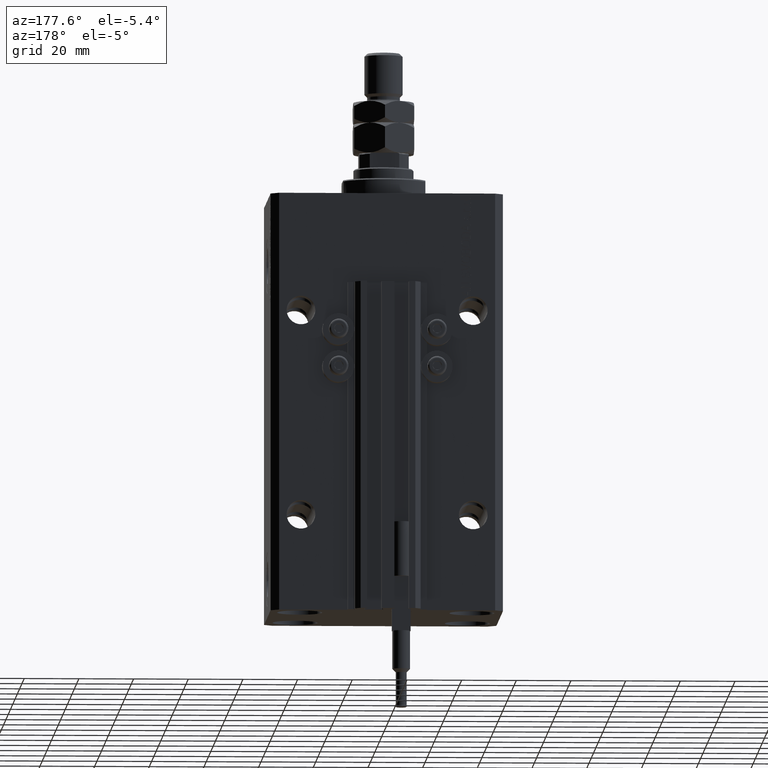
[diagram: clean part render]
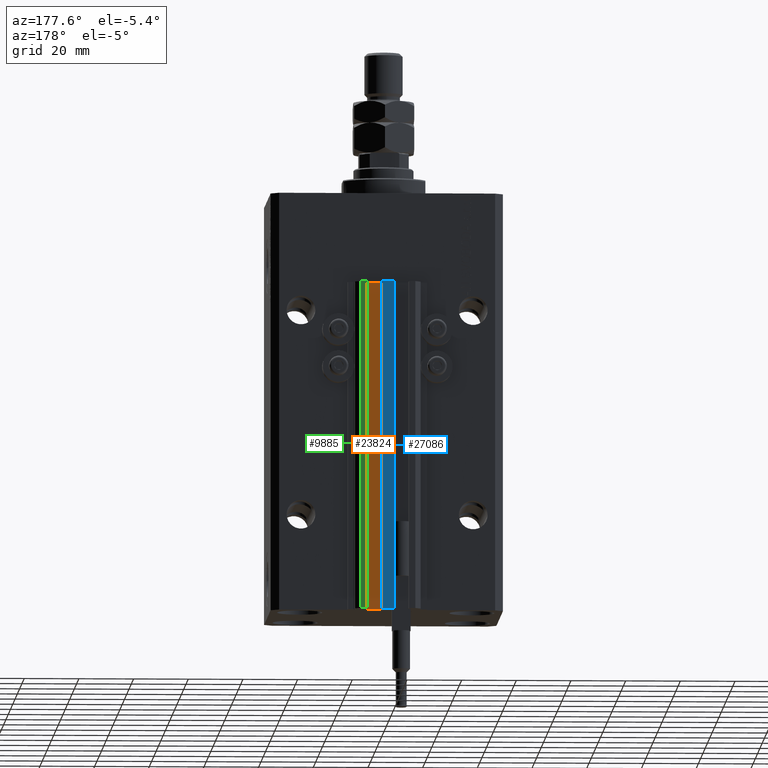
[diagram: same view with three faces highlighted in distinct colors, each labeled with its STEP entity id]
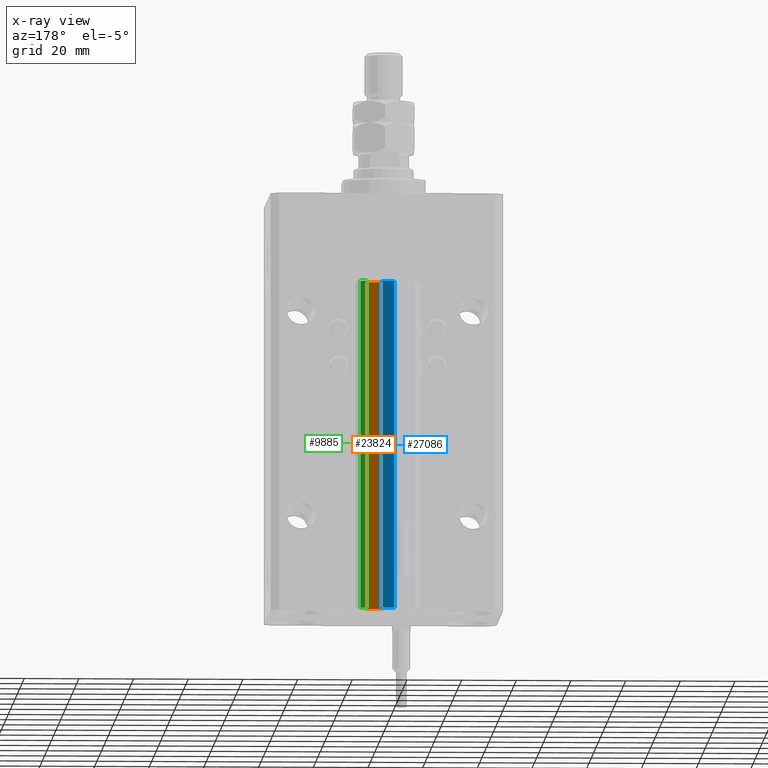
[diagram: x-ray of the same camera — body ghosted, the three highlighted faces saturated]
A machine part, auxiliary view with three faces highlighted in distinct colors.
The next image is the same camera in x-ray (body ghosted, the three faces saturated) — at least one of them is partly hidden behind the body in this view.
Their STEP definitions:

[orange] entity #23824 — the highlighted planar face has unit normal (0, 1, 0).
#83 = CARTESIAN_POINT ( 'NONE',  ( 1.800000000000000933, 33.50000000000000000, -33.00000000000000000 ) ) ;
#1626 = CARTESIAN_POINT ( 'NONE',  ( 8.199999999999999289, 33.50000000000000000, -153.0000000000000000 ) ) ;
#2266 = EDGE_CURVE ( 'NONE', #22107, #38947, #28808, .T. ) ;
#2409 = LINE ( 'NONE', #33883, #29758 ) ;
#3352 = CARTESIAN_POINT ( 'NONE',  ( 8.199999999999999289, 33.50000000000000000, -33.00000000000000000 ) ) ;
#4803 = CARTESIAN_POINT ( 'NONE',  ( 8.199999999999999289, 33.50000000000000000, -33.00000000000000000 ) ) ;
#5303 = DIRECTION ( 'NONE',  ( -1.000000000000000000, 0.000000000000000000, 0.000000000000000000 ) ) ;
#5429 = VECTOR ( 'NONE', #34911, 1000.000000000000000 ) ;
#8906 = EDGE_LOOP ( 'NONE', ( #23536, #35088, #37179, #48665 ) ) ;
#9643 = CARTESIAN_POINT ( 'NONE',  ( 1.800000000000000933, 33.50000000000000000, -153.0000000000000000 ) ) ;
#12390 = VECTOR ( 'NONE', #20621, 1000.000000000000000 ) ;
#13134 = CARTESIAN_POINT ( 'NONE',  ( 1.800000000000000933, 33.50000000000000000, -153.0000000000000000 ) ) ;
#16602 = EDGE_CURVE ( 'NONE', #22397, #38947, #48462, .T. ) ;
#17281 = PLANE ( 'NONE',  #47179 ) ;
#17368 = EDGE_CURVE ( 'NONE', #42711, #22107, #2409, .T. ) ;
#20621 = DIRECTION ( 'NONE',  ( 0.000000000000000000, 0.000000000000000000, 1.000000000000000000 ) ) ;
#22107 = VERTEX_POINT ( 'NONE', #3352 ) ;
#22397 = VERTEX_POINT ( 'NONE', #9643 ) ;
#23041 = LINE ( 'NONE', #39287, #5429 ) ;
#23536 = ORIENTED_EDGE ( 'NONE', *, *, #2266, .F. ) ;
#23824 = ADVANCED_FACE ( 'NONE', ( #36367 ), #17281, .T. ) ;
#28808 = LINE ( 'NONE', #4803, #40770 ) ;
#29758 = VECTOR ( 'NONE', #42113, 1000.000000000000000 ) ;
#33263 = CARTESIAN_POINT ( 'NONE',  ( 8.199999999999999289, 33.50000000000000000, -153.0000000000000000 ) ) ;
#33883 = CARTESIAN_POINT ( 'NONE',  ( 8.199999999999999289, 33.50000000000000000, -153.0000000000000000 ) ) ;
#34911 = DIRECTION ( 'NONE',  ( -1.000000000000000000, 0.000000000000000000, 0.000000000000000000 ) ) ;
#35088 = ORIENTED_EDGE ( 'NONE', *, *, #17368, .F. ) ;
#36367 = FACE_OUTER_BOUND ( 'NONE', #8906, .T. ) ;
#37132 = DIRECTION ( 'NONE',  ( 0.000000000000000000, 0.000000000000000000, 1.000000000000000000 ) ) ;
#37179 = ORIENTED_EDGE ( 'NONE', *, *, #50591, .T. ) ;
#38947 = VERTEX_POINT ( 'NONE', #83 ) ;
#39287 = CARTESIAN_POINT ( 'NONE',  ( 8.199999999999999289, 33.50000000000000000, -153.0000000000000000 ) ) ;
#40770 = VECTOR ( 'NONE', #5303, 1000.000000000000000 ) ;
#42113 = DIRECTION ( 'NONE',  ( 0.000000000000000000, 0.000000000000000000, 1.000000000000000000 ) ) ;
#42711 = VERTEX_POINT ( 'NONE', #1626 ) ;
#44366 = DIRECTION ( 'NONE',  ( 0.000000000000000000, 1.000000000000000000, -0.000000000000000000 ) ) ;
#47179 = AXIS2_PLACEMENT_3D ( 'NONE', #33263, #44366, #37132 ) ;
#48462 = LINE ( 'NONE', #13134, #12390 ) ;
#48665 = ORIENTED_EDGE ( 'NONE', *, *, #16602, .T. ) ;
#50591 = EDGE_CURVE ( 'NONE', #42711, #22397, #23041, .T. ) ;

[blue] entity #27086 — the highlighted planar face has unit normal (0, -1, 0).
#297 = ORIENTED_EDGE ( 'NONE', *, *, #48565, .T. ) ;
#1085 = EDGE_CURVE ( 'NONE', #35405, #17147, #36849, .T. ) ;
#2658 = VERTEX_POINT ( 'NONE', #9061 ) ;
#3182 = ORIENTED_EDGE ( 'NONE', *, *, #37697, .F. ) ;
#3746 = CARTESIAN_POINT ( 'NONE',  ( 2.349999999999999645, 39.50000000000000711, -153.0000000000000000 ) ) ;
#7360 = DIRECTION ( 'NONE',  ( 1.000000000000000000, 0.000000000000000000, 0.000000000000000000 ) ) ;
#8495 = DIRECTION ( 'NONE',  ( 0.000000000000000000, 0.000000000000000000, 1.000000000000000000 ) ) ;
#8651 = VECTOR ( 'NONE', #7360, 1000.000000000000000 ) ;
#9061 = CARTESIAN_POINT ( 'NONE',  ( -2.350000000000003642, 39.50000000000000711, -153.0000000000000000 ) ) ;
#9773 = CARTESIAN_POINT ( 'NONE',  ( -2.350000000000003642, 39.50000000000000711, -153.0000000000000000 ) ) ;
#11879 = DIRECTION ( 'NONE',  ( 0.000000000000000000, -0.000000000000000000, -1.000000000000000000 ) ) ;
#13623 = DIRECTION ( 'NONE',  ( 0.000000000000000000, -1.000000000000000000, 0.000000000000000000 ) ) ;
#13838 = CARTESIAN_POINT ( 'NONE',  ( 2.349999999999999645, 39.50000000000000711, -33.00000000000000000 ) ) ;
#17147 = VERTEX_POINT ( 'NONE', #13838 ) ;
#19681 = LINE ( 'NONE', #35410, #33563 ) ;
#23750 = CARTESIAN_POINT ( 'NONE',  ( -2.350000000000003642, 39.50000000000000711, -153.0000000000000000 ) ) ;
#24642 = EDGE_LOOP ( 'NONE', ( #41494, #3182, #31543, #297 ) ) ;
#26718 = LINE ( 'NONE', #9773, #8651 ) ;
#27086 = ADVANCED_FACE ( 'NONE', ( #47221 ), #39730, .F. ) ;
#31287 = DIRECTION ( 'NONE',  ( 0.000000000000000000, 0.000000000000000000, 1.000000000000000000 ) ) ;
#31543 = ORIENTED_EDGE ( 'NONE', *, *, #48664, .F. ) ;
#33362 = VECTOR ( 'NONE', #8495, 1000.000000000000000 ) ;
#33545 = CARTESIAN_POINT ( 'NONE',  ( -2.350000000000003642, 39.50000000000000711, -33.00000000000000000 ) ) ;
#33563 = VECTOR ( 'NONE', #31287, 1000.000000000000000 ) ;
#35405 = VERTEX_POINT ( 'NONE', #33545 ) ;
#35410 = CARTESIAN_POINT ( 'NONE',  ( 2.349999999999999645, 39.50000000000000711, -153.0000000000000000 ) ) ;
#36849 = LINE ( 'NONE', #40449, #44059 ) ;
#37697 = EDGE_CURVE ( 'NONE', #45054, #17147, #19681, .T. ) ;
#39730 = PLANE ( 'NONE',  #50558 ) ;
#40202 = DIRECTION ( 'NONE',  ( 1.000000000000000000, 0.000000000000000000, 0.000000000000000000 ) ) ;
#40449 = CARTESIAN_POINT ( 'NONE',  ( -2.350000000000003642, 39.50000000000000711, -33.00000000000000000 ) ) ;
#40989 = CARTESIAN_POINT ( 'NONE',  ( -2.350000000000003642, 39.50000000000000711, -153.0000000000000000 ) ) ;
#41494 = ORIENTED_EDGE ( 'NONE', *, *, #1085, .T. ) ;
#43842 = LINE ( 'NONE', #40989, #33362 ) ;
#44059 = VECTOR ( 'NONE', #40202, 1000.000000000000000 ) ;
#45054 = VERTEX_POINT ( 'NONE', #3746 ) ;
#47221 = FACE_OUTER_BOUND ( 'NONE', #24642, .T. ) ;
#48565 = EDGE_CURVE ( 'NONE', #2658, #35405, #43842, .T. ) ;
#48664 = EDGE_CURVE ( 'NONE', #2658, #45054, #26718, .T. ) ;
#50558 = AXIS2_PLACEMENT_3D ( 'NONE', #23750, #13623, #11879 ) ;

[green] entity #9885 — the highlighted planar face has unit normal (0, 1, 0).
#3492 = EDGE_CURVE ( 'NONE', #6099, #37261, #22270, .T. ) ;
#3547 = ORIENTED_EDGE ( 'NONE', *, *, #8621, .T. ) ;
#3864 = AXIS2_PLACEMENT_3D ( 'NONE', #19182, #16765, #32499 ) ;
#4608 = VECTOR ( 'NONE', #25888, 1000.000000000000000 ) ;
#5767 = CARTESIAN_POINT ( 'NONE',  ( 9.999999999999998224, 39.50000000000002132, -153.0000000000000000 ) ) ;
#6099 = VERTEX_POINT ( 'NONE', #15357 ) ;
#6420 = VERTEX_POINT ( 'NONE', #36308 ) ;
#8341 = CARTESIAN_POINT ( 'NONE',  ( 9.999999999999998224, 39.50000000000002132, -153.0000000000000000 ) ) ;
#8621 = EDGE_CURVE ( 'NONE', #6099, #6420, #35956, .T. ) ;
#9885 = ADVANCED_FACE ( 'NONE', ( #11670 ), #42651, .T. ) ;
#10436 = VECTOR ( 'NONE', #11693, 1000.000000000000000 ) ;
#11670 = FACE_OUTER_BOUND ( 'NONE', #26770, .T. ) ;
#11693 = DIRECTION ( 'NONE',  ( -1.000000000000000000, 0.000000000000000000, 0.000000000000000000 ) ) ;
#11757 = EDGE_CURVE ( 'NONE', #37261, #28441, #35953, .T. ) ;
#11950 = CARTESIAN_POINT ( 'NONE',  ( 9.999999999999998224, 39.50000000000002132, -33.00000000000000000 ) ) ;
#15357 = CARTESIAN_POINT ( 'NONE',  ( 9.999999999999998224, 39.50000000000002132, -153.0000000000000000 ) ) ;
#15922 = ORIENTED_EDGE ( 'NONE', *, *, #3492, .F. ) ;
#16765 = DIRECTION ( 'NONE',  ( 0.000000000000000000, 1.000000000000000000, -0.000000000000000000 ) ) ;
#18813 = VECTOR ( 'NONE', #43430, 1000.000000000000000 ) ;
#19182 = CARTESIAN_POINT ( 'NONE',  ( 9.999999999999998224, 39.50000000000002132, -153.0000000000000000 ) ) ;
#22270 = LINE ( 'NONE', #5767, #4608 ) ;
#23314 = LINE ( 'NONE', #50665, #45999 ) ;
#23907 = ORIENTED_EDGE ( 'NONE', *, *, #39706, .T. ) ;
#25888 = DIRECTION ( 'NONE',  ( 0.000000000000000000, 0.000000000000000000, 1.000000000000000000 ) ) ;
#26770 = EDGE_LOOP ( 'NONE', ( #46197, #15922, #3547, #23907 ) ) ;
#28441 = VERTEX_POINT ( 'NONE', #37743 ) ;
#28811 = CARTESIAN_POINT ( 'NONE',  ( 9.999999999999998224, 39.50000000000002132, -33.00000000000000000 ) ) ;
#32499 = DIRECTION ( 'NONE',  ( 0.000000000000000000, 0.000000000000000000, 1.000000000000000000 ) ) ;
#35953 = LINE ( 'NONE', #11950, #18813 ) ;
#35956 = LINE ( 'NONE', #8341, #10436 ) ;
#36308 = CARTESIAN_POINT ( 'NONE',  ( 7.649999999999998579, 39.50000000000002132, -153.0000000000000000 ) ) ;
#37261 = VERTEX_POINT ( 'NONE', #28811 ) ;
#37743 = CARTESIAN_POINT ( 'NONE',  ( 7.649999999999998579, 39.50000000000002132, -33.00000000000000000 ) ) ;
#39706 = EDGE_CURVE ( 'NONE', #6420, #28441, #23314, .T. ) ;
#42651 = PLANE ( 'NONE',  #3864 ) ;
#43430 = DIRECTION ( 'NONE',  ( -1.000000000000000000, 0.000000000000000000, 0.000000000000000000 ) ) ;
#45999 = VECTOR ( 'NONE', #49916, 1000.000000000000000 ) ;
#46197 = ORIENTED_EDGE ( 'NONE', *, *, #11757, .F. ) ;
#49916 = DIRECTION ( 'NONE',  ( 0.000000000000000000, 0.000000000000000000, 1.000000000000000000 ) ) ;
#50665 = CARTESIAN_POINT ( 'NONE',  ( 7.649999999999998579, 39.50000000000002132, -153.0000000000000000 ) ) ;